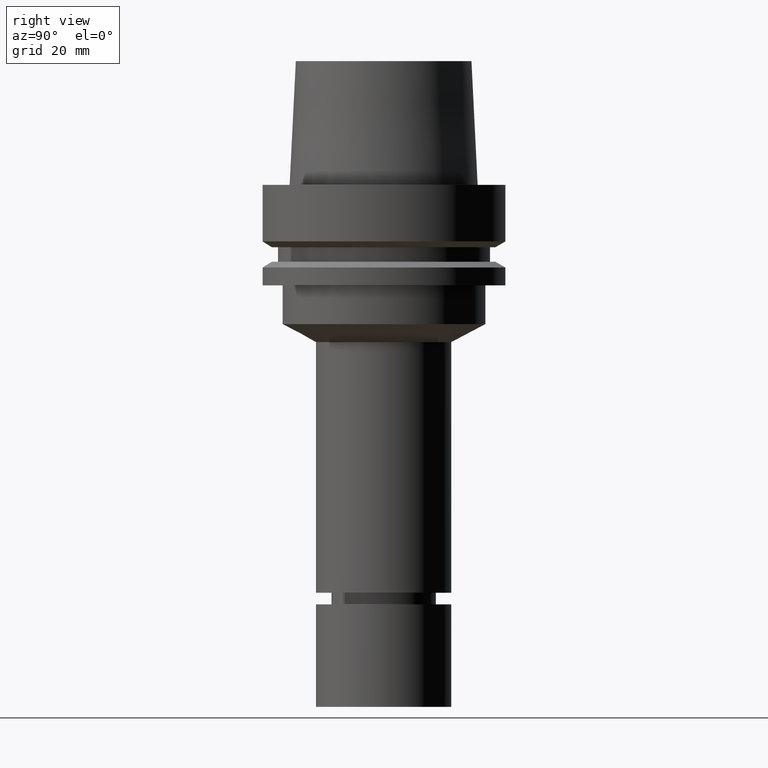
[diagram: clean part render]
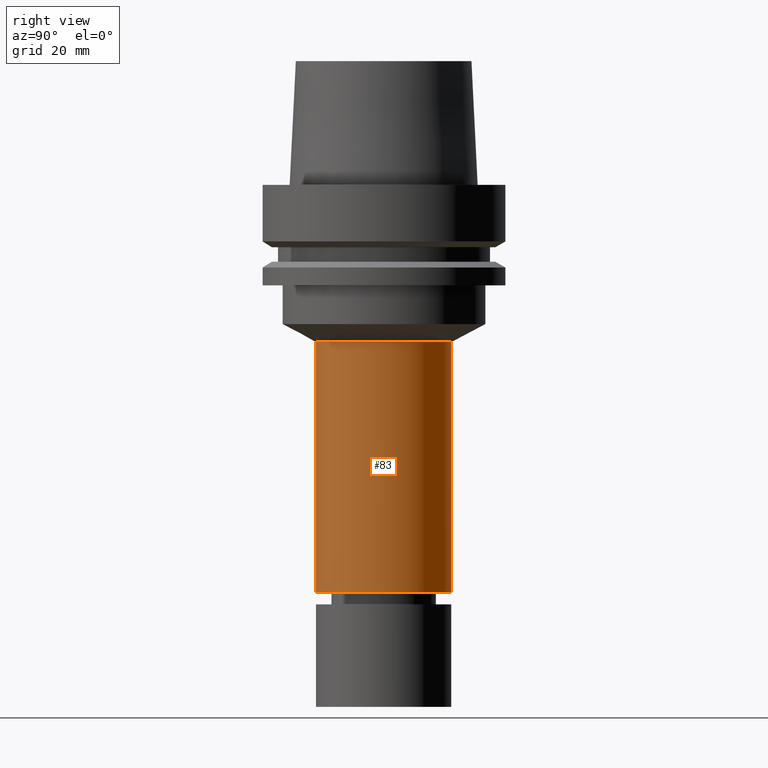
[diagram: same view with one face highlighted and labeled with its STEP entity id]
A machine part, right view. The second image highlights one B-rep face of the part: STEP entity #83.
In plain terms, the highlighted cylindrical surface (bore or boss wall) has radius 17.5 mm, axis along (-0, -0, 1).
Its self-contained STEP definition (entity closure, byte-faithful):
#83=ADVANCED_FACE('Unnamed[1]',(#221,#222),#223,.T.);
#159=EDGE_CURVE('Unnamed[1]',#340,#340,#341,.T.);
#177=EDGE_CURVE('Unnamed[1]',#366,#366,#367,.T.);
#221=FACE_BOUND('',#414,.T.);
#222=FACE_BOUND('',#415,.T.);
#223=CYLINDRICAL_SURFACE('',#416,17.4999999999999);
#340=VERTEX_POINT('',#561);
#341=CIRCLE('',#562,17.5);
#366=VERTEX_POINT('',#593);
#367=CIRCLE('',#594,17.4999999999999);
#414=EDGE_LOOP('',(#637));
#415=EDGE_LOOP('',(#638));
#416=AXIS2_PLACEMENT_3D('',#639,#640,#641);
#561=CARTESIAN_POINT('',(6.46001186550228E-015,17.5,-105.5));
#562=AXIS2_PLACEMENT_3D('',#772,#773,#774);
#593=CARTESIAN_POINT('',(2.48970289259618E-015,17.4999999999999,-40.6599338573311));
#594=AXIS2_PLACEMENT_3D('',#799,#800,#801);
#637=ORIENTED_EDGE('',*,*,#177,.F.);
#638=ORIENTED_EDGE('',*,*,#159,.T.);
#639=CARTESIAN_POINT('',(4.47485737904923E-015,8.94971475809846E-015,-73.0799669286655));
#640=DIRECTION('',(-6.12323399573677E-017,-1.22464679914735E-016,1.0));
#641=DIRECTION('',(-1.23259516440783E-032,1.0,1.22464679914735E-016));
#772=CARTESIAN_POINT('',(6.46001186550228E-015,1.29200237310045E-014,-105.5));
#773=DIRECTION('',(-6.12323399573676E-017,-1.22464679914735E-016,1.0));
#774=DIRECTION('',(-1.23259516440783E-032,1.0,1.22464679914735E-016));
#799=CARTESIAN_POINT('',(2.48970289259618E-015,4.97940578519236E-015,-40.6599338573311));
#800=DIRECTION('',(-6.12323399573677E-017,-1.22464679914735E-016,1.0));
#801=DIRECTION('',(-1.23259516440783E-032,1.0,1.22464679914735E-016));